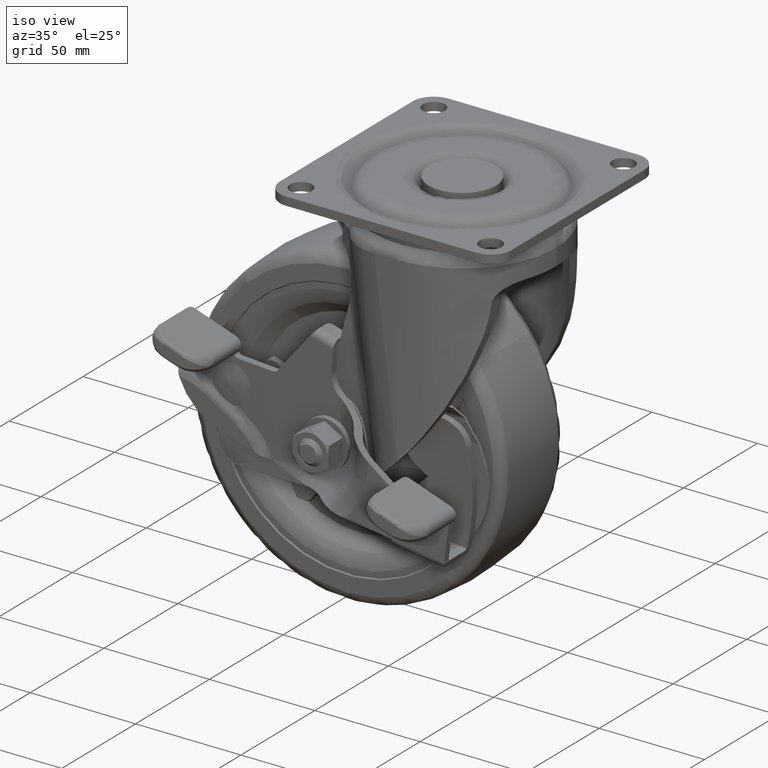
[diagram: clean part render]
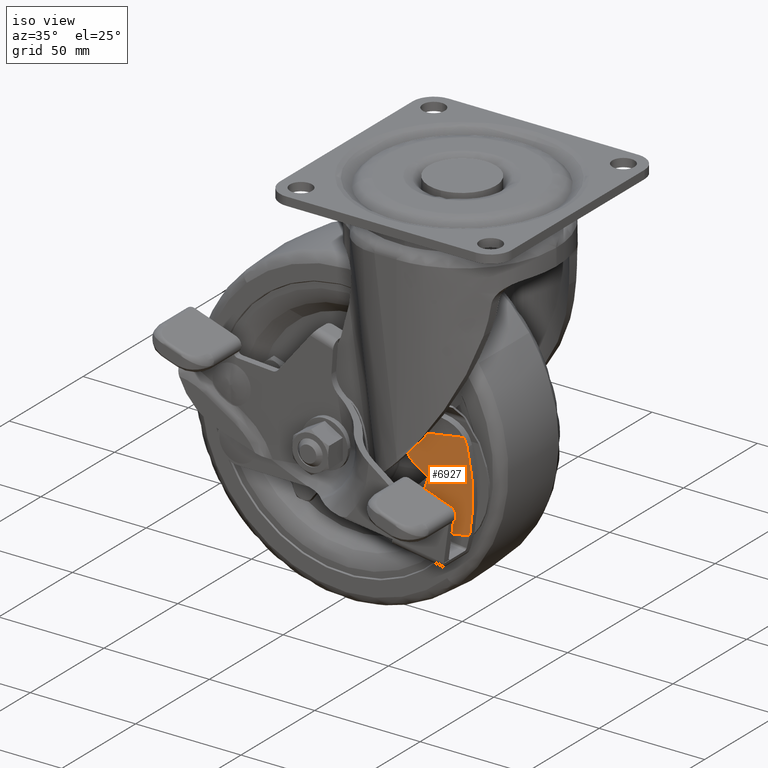
[diagram: same view with one face highlighted and labeled with its STEP entity id]
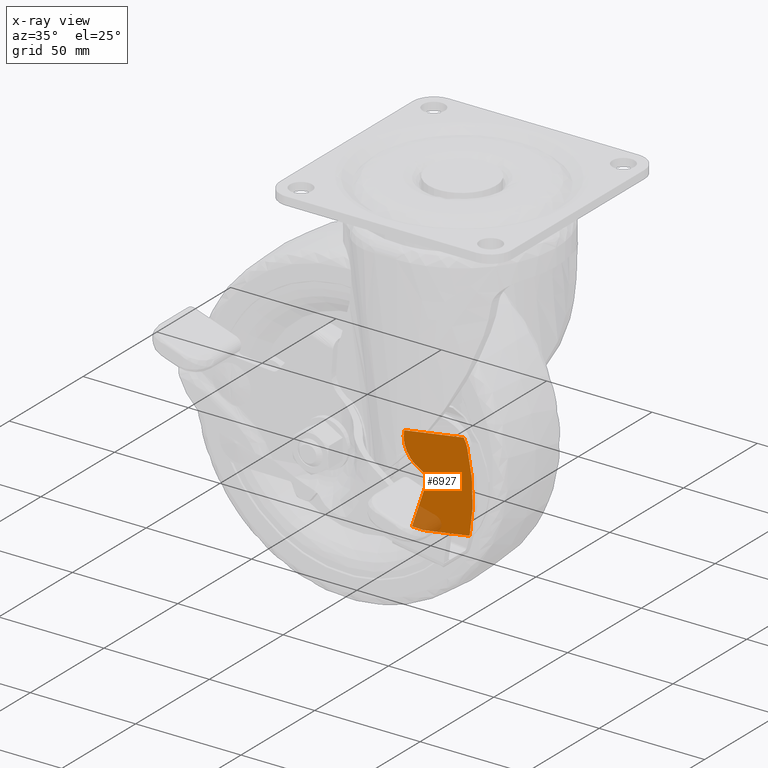
[diagram: x-ray of the same camera — body ghosted, the highlighted face saturated]
A machine part, iso view. The second image highlights one B-rep face of the part: STEP entity #6927.
The next image is the same camera in x-ray: the body ghosted, the highlighted face saturated — about 9% of this face is hidden behind the body in this view.
In plain terms, the highlighted face is a freeform B-spline surface patch.
Its self-contained STEP definition (entity closure, byte-faithful):
#5712=CARTESIAN_POINT('',(0.070447912938837,-34.240706374031149,-137.364961462795610));
#5713=VERTEX_POINT('',#5712);
#5727=CARTESIAN_POINT('',(8.581311483066379,-35.205124431192147,-113.513337776184000));
#5728=VERTEX_POINT('',#5727);
#5729=CARTESIAN_POINT('',(8.581311483066379,-35.205124431192147,-113.513337776184000));
#5730=CARTESIAN_POINT('',(0.070447912938837,-34.240706374031149,-137.364961462795610));
#5731=QUASI_UNIFORM_CURVE('',1,(#5729,#5730),.UNSPECIFIED.,.F.,.U.);
#5732=EDGE_CURVE('',#5728,#5713,#5731,.T.);
#5985=CARTESIAN_POINT('',(26.758902648981699,-34.838264803896386,-96.251657830156901));
#5986=VERTEX_POINT('',#5985);
#5992=CARTESIAN_POINT('',(25.969182062194800,-32.092085654434200,-135.338220563400800));
#5993=VERTEX_POINT('',#5992);
#5994=CARTESIAN_POINT('',(25.969182062194800,-32.092085654434200,-135.338220563400800));
#5995=CARTESIAN_POINT('',(30.259363396209469,-33.114376645394394,-115.873642462722700));
#5996=CARTESIAN_POINT('',(26.758902648981699,-34.838264803896386,-96.251657830156901));
#6004=(BOUNDED_CURVE()B_SPLINE_CURVE(2,(#5994,#5995,#5996),.UNSPECIFIED.,.F.,.U.)CURVE()GEOMETRIC_REPRESENTATION_ITEM()QUASI_UNIFORM_CURVE()RATIONAL_B_SPLINE_CURVE((1.0,0.980709148313253,1.0))REPRESENTATION_ITEM(''));
#6005=EDGE_CURVE('',#5993,#5986,#6004,.T.);
#6840=CARTESIAN_POINT('',(4.982045553608930,-33.771711159606546,-137.834424100116390));
#6841=VERTEX_POINT('',#6840);
#6847=CARTESIAN_POINT('',(0.070447912938851,-34.240706374031127,-137.364961462795610));
#6848=CARTESIAN_POINT('',(4.413628477241249,-33.817202254528084,-137.902031451684650));
#6849=CARTESIAN_POINT('',(4.982045553608538,-33.771711159606582,-137.834424100116310));
#6857=(BOUNDED_CURVE()B_SPLINE_CURVE(2,(#6847,#6848,#6849),.UNSPECIFIED.,.F.,.U.)CURVE()GEOMETRIC_REPRESENTATION_ITEM()QUASI_UNIFORM_CURVE()RATIONAL_B_SPLINE_CURVE((1.0,0.988093394259238,1.0))REPRESENTATION_ITEM(''));
#6858=EDGE_CURVE('',#5713,#6841,#6857,.T.);
#6863=CARTESIAN_POINT('',(-3.543055452730234,-34.361980673640559,-140.125367159746590));
#6864=CARTESIAN_POINT('',(29.656154639677840,-31.420508111375909,-140.125367159746590));
#6865=CARTESIAN_POINT('',(-3.224566366904474,-37.956638059915072,-89.841890240300060));
#6866=CARTESIAN_POINT('',(29.974643725503601,-35.015165497650422,-89.841890240300060));
#6867=B_SPLINE_SURFACE_WITH_KNOTS('',1,1,((#6863,#6865),(#6864,#6866)),.UNSPECIFIED.,.F.,.F.,.U.,(2,2),(2,2),(0.0,33.329263592140862),(0.0,50.412806390152518),.UNSPECIFIED.);
#6868=ORIENTED_EDGE('',*,*,#5732,.T.);
#6869=ORIENTED_EDGE('',*,*,#6858,.T.);
#6870=CARTESIAN_POINT('',(4.982045553608930,-33.771711159606546,-137.834424100116390));
#6871=CARTESIAN_POINT('',(25.969182062194800,-32.092085654434200,-135.338220563400800));
#6872=QUASI_UNIFORM_CURVE('',1,(#6870,#6871),.UNSPECIFIED.,.F.,.U.);
#6873=EDGE_CURVE('',#6841,#5993,#6872,.T.);
#6874=ORIENTED_EDGE('',*,*,#6873,.T.);
#6875=ORIENTED_EDGE('',*,*,#6005,.T.);
#6876=CARTESIAN_POINT('',(25.351447357580849,-35.260257306699103,-92.125425898958198));
#6877=VERTEX_POINT('',#6876);
#6878=CARTESIAN_POINT('',(25.351447357580820,-35.260257306699117,-92.125425898958227));
#6879=CARTESIAN_POINT('',(26.371600047271645,-35.029002005991117,-94.080609467658860));
#6880=CARTESIAN_POINT('',(26.758902648980911,-34.838264803896358,-96.251657830157868));
#6888=(BOUNDED_CURVE()B_SPLINE_CURVE(2,(#6878,#6879,#6880),.UNSPECIFIED.,.F.,.U.)CURVE()GEOMETRIC_REPRESENTATION_ITEM()QUASI_UNIFORM_CURVE()RATIONAL_B_SPLINE_CURVE((1.0,0.988441969081952,1.0))REPRESENTATION_ITEM(''));
#6889=EDGE_CURVE('',#6877,#5986,#6888,.T.);
#6890=ORIENTED_EDGE('',*,*,#6889,.F.);
#6891=CARTESIAN_POINT('',(-1.348978562907452,-37.397124161149193,-95.301166314391608));
#6892=VERTEX_POINT('',#6891);
#6893=CARTESIAN_POINT('',(-1.348978562907452,-37.397124161149193,-95.301166314391608));
#6894=CARTESIAN_POINT('',(25.351447357580849,-35.260257306699103,-92.125425898958198));
#6895=QUASI_UNIFORM_CURVE('',1,(#6893,#6894),.UNSPECIFIED.,.F.,.U.);
#6896=EDGE_CURVE('',#6892,#6877,#6895,.T.);
#6897=ORIENTED_EDGE('',*,*,#6896,.F.);
#6898=CARTESIAN_POINT('',(5.187758279319350,-35.679965497144103,-111.095956898824000));
#6899=VERTEX_POINT('',#6898);
#6900=CARTESIAN_POINT('',(5.187758279319350,-35.679965497144103,-111.095956898824000));
#6901=CARTESIAN_POINT('',(-3.918144877851406,-36.881692060541106,-105.614448551925310));
#6902=CARTESIAN_POINT('',(-1.348978562907501,-37.397124161149222,-95.301166314391565));
#6910=(BOUNDED_CURVE()B_SPLINE_CURVE(2,(#6900,#6901,#6902),.UNSPECIFIED.,.F.,.U.)CURVE()GEOMETRIC_REPRESENTATION_ITEM()QUASI_UNIFORM_CURVE()RATIONAL_B_SPLINE_CURVE((1.0,0.804160102665300,1.0))REPRESENTATION_ITEM(''));
#6911=EDGE_CURVE('',#6899,#6892,#6910,.T.);
#6912=ORIENTED_EDGE('',*,*,#6911,.F.);
#6913=CARTESIAN_POINT('',(5.176202165279720,-35.678571311648398,-111.129518281247200));
#6914=VERTEX_POINT('',#6913);
#6915=CARTESIAN_POINT('',(5.176202165279720,-35.678571311648398,-111.129518281247200));
#6916=CARTESIAN_POINT('',(5.187758279319350,-35.679965497144103,-111.095956898824000));
#6917=QUASI_UNIFORM_CURVE('',1,(#6915,#6916),.UNSPECIFIED.,.F.,.U.);
#6918=EDGE_CURVE('',#6914,#6899,#6917,.T.);
#6919=ORIENTED_EDGE('',*,*,#6918,.F.);
#6920=CARTESIAN_POINT('',(5.176202165279720,-35.678571311648398,-111.129518281247200));
#6921=CARTESIAN_POINT('',(8.581311483066379,-35.205124431192147,-113.513337776184000));
#6922=QUASI_UNIFORM_CURVE('',1,(#6920,#6921),.UNSPECIFIED.,.F.,.U.);
#6923=EDGE_CURVE('',#6914,#5728,#6922,.T.);
#6924=ORIENTED_EDGE('',*,*,#6923,.T.);
#6925=EDGE_LOOP('',(#6868,#6869,#6874,#6875,#6890,#6897,#6912,#6919,#6924));
#6926=FACE_OUTER_BOUND('',#6925,.T.);
#6927=ADVANCED_FACE('',(#6926),#6867,.T.);